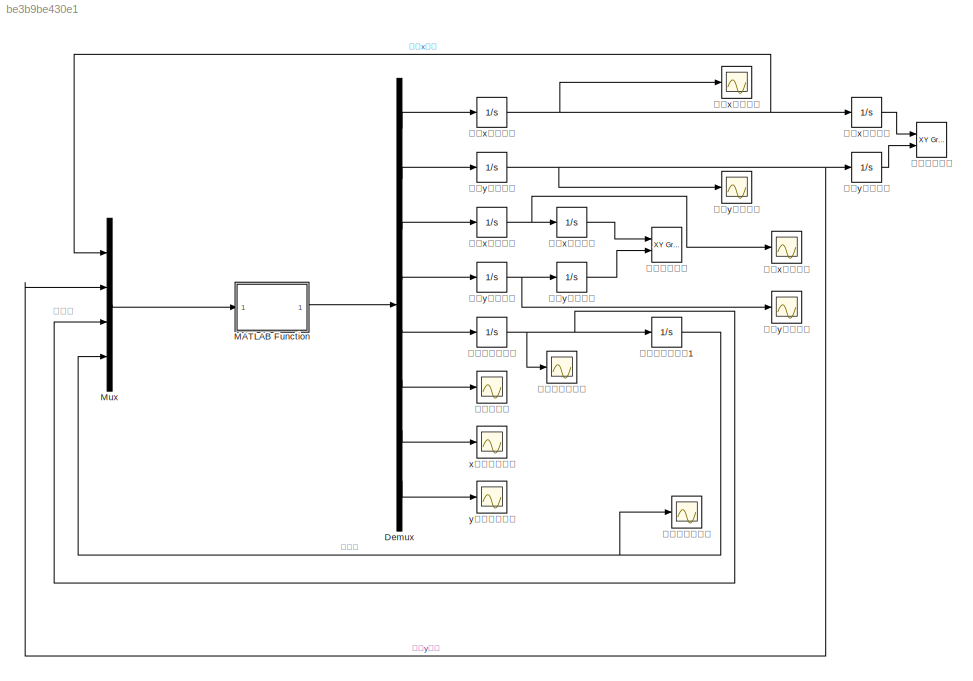
MODEL slx_be3b9be430e1
KIND model
CONFIG AbsTol = auto
CONFIG EnableMultiTasking = off
CONFIG FixedStep = auto
CONFIG MaxStep = auto
CONFIG MinStep = auto
CONFIG RelTol = 1e-3
CONFIG SampleTimeConstraint = Unconstrained
CONFIG Solver = VariableStepAuto
CONFIG SolverName = VariableStepAuto
CONFIG StartTime = 0.0
CONFIG StopTime = 10.0
BLOCK [Demux] Demux
  DisplayOption = bar
  Outputs = 8
  Ports = [1, 8]
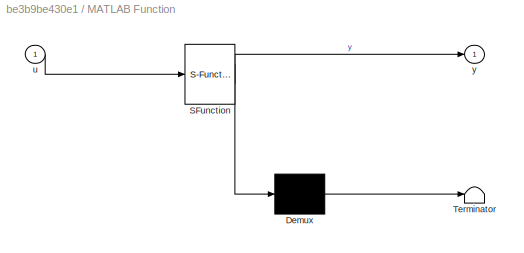
BLOCK [SubSystem] MATLAB Function
  ErrorFcn = Stateflow.Translate.translate
  PermitHierarchicalResolution = ExplicitOnly
  Ports = [1, 1]
  RequestExecContextInheritance = off
  SFBlockType = MATLAB Function
  TreatAsAtomicUnit = on
BLOCK [Demux] MATLAB Function/ Demux 
  Outputs = 1
  Ports = [1, 1]
BLOCK [S-Function] MATLAB Function/ SFunction 
  EnableBusSupport = on
  FunctionName = sf_sfun
  PortCounts = [1 2]
  Ports = [1, 2]
  SFcnIsStateOwnerBlock = off
  SFunctionDeploymentMode = off
  Tag = Stateflow S-Function dynamic1 2
BLOCK [Terminator] MATLAB Function/ Terminator 
BLOCK [Inport] MATLAB Function/u
  IconDisplay = Port number
BLOCK [Outport] MATLAB Function/y
  IconDisplay = Port number
BLOCK [Mux] Mux
  DisplayOption = bar
  Ports = [4, 1]
BLOCK [Scope] x向动反力监视
  Floating = off
  NumInputPorts = 1
  Ports = [1]
  ScopeSpecificationString = Simulink.scopes.TimeScopeBlockCfg('CurrentConfiguration', extmgr.ConfigurationSet(extmgr.Configuration('Core','General UI',true),extmgr.Configuration('Core','Source UI',true),extmgr.Configuration('Sources','WiredSimulink',true,'DataLoggingVariableName','ScopeData1'),extmgr.Configuration('Visuals','Time Domain',true,'SerializedDisplays',{struct('MinYLimReal','-3.23673','MaxYLimReal','3.86446','YLab...<+1395ch>
BLOCK [Scope] y向动反力监视
  Floating = off
  NumInputPorts = 1
  Ports = [1]
  ScopeSpecificationString = Simulink.scopes.TimeScopeBlockCfg('CurrentConfiguration', extmgr.ConfigurationSet(extmgr.Configuration('Core','General UI',true),extmgr.Configuration('Core','Source UI',true),extmgr.Configuration('Sources','WiredSimulink',true,'DataLoggingVariableName','ScopeData2'),extmgr.Configuration('Visuals','Time Domain',true,'SerializedDisplays',{struct('MinYLimReal','-1.42846','MaxYLimReal','9.12327','YLab...<+1395ch>
BLOCK [Integrator] 摆锤x位置积分
  InitialCondition = 0.3536
  Ports = [1, 1]
BLOCK [Scope] 摆锤x速度监视
  Floating = off
  NumInputPorts = 1
  Ports = [1]
  ScopeSpecificationString = Simulink.scopes.TimeScopeBlockCfg('CurrentConfiguration', extmgr.ConfigurationSet(extmgr.Configuration('Core','General UI',true),extmgr.Configuration('Core','Source UI',true),extmgr.Configuration('Sources','WiredSimulink',true,'DataLoggingVariableName','ScopeData7'),extmgr.Configuration('Visuals','Time Domain',true,'SerializedDisplays',{struct('MinYLimReal','-2.41107','MaxYLimReal','7.64109','YLab...<+1366ch>
BLOCK [Integrator] 摆锤x速度积分
  Ports = [1, 1]
BLOCK [Integrator] 摆锤y位置积分
  InitialCondition = 0.6464
  Ports = [1, 1]
BLOCK [Scope] 摆锤y速度监视
  Floating = off
  NumInputPorts = 1
  Ports = [1]
  ScopeSpecificationString = Simulink.scopes.TimeScopeBlockCfg('CurrentConfiguration', extmgr.ConfigurationSet(extmgr.Configuration('Core','General UI',true),extmgr.Configuration('Core','Source UI',true),extmgr.Configuration('Sources','WiredSimulink',true,'DataLoggingVariableName','ScopeData8'),extmgr.Configuration('Visuals','Time Domain',true,'SerializedDisplays',{struct('MinYLimReal','-4.50938','MaxYLimReal','1.05265','YLab...<+1366ch>
BLOCK [Integrator] 摆锤y速度积分
  Ports = [1, 1]
BLOCK [Reference] 摆锤位置监视  REF=simulink/Sinks/XY Graph
  Ports = [2]
  SourceBlock = simulink/Sinks/XY Graph
  SourceProductBaseCode = SL
  SourceProductName = Simulink
  SourceType = XY scope.
BLOCK [Scope] 摆锤角位置监视
  Floating = off
  NumInputPorts = 1
  Ports = [1]
  ScopeSpecificationString = Simulink.scopes.TimeScopeBlockCfg('CurrentConfiguration', extmgr.ConfigurationSet(extmgr.Configuration('Core','General UI',true),extmgr.Configuration('Core','Source UI',true),extmgr.Configuration('Sources','WiredSimulink',true,'DataLoggingVariableName','ScopeData6'),extmgr.Configuration('Visuals','Time Domain',true,'SerializedDisplays',{struct('MinYLimReal','-2.6867','MaxYLimReal','-0.55469','YLab...<+1360ch>
BLOCK [Integrator] 摆锤角位置积分1
  InitialCondition = -pi/4
  Ports = [1, 1]
BLOCK [Scope] 摆锤角速度监视
  Floating = off
  NumInputPorts = 1
  Ports = [1]
  ScopeSpecificationString = Simulink.scopes.TimeScopeBlockCfg('CurrentConfiguration', extmgr.ConfigurationSet(extmgr.Configuration('Core','General UI',true),extmgr.Configuration('Core','Source UI',true),extmgr.Configuration('Sources','WiredSimulink',true,'DataLoggingVariableName','ScopeData5'),extmgr.Configuration('Visuals','Time Domain',true,'SerializedDisplays',{struct('MinYLimReal','-4.54385','MaxYLimReal','4.53615','YLab...<+1366ch>
BLOCK [Integrator] 摆锤角速度积分
  Ports = [1, 1]
BLOCK [Scope] 支持力监视
  Floating = off
  NumInputPorts = 1
  Ports = [1]
  ScopeSpecificationString = Simulink.scopes.TimeScopeBlockCfg('CurrentConfiguration', extmgr.ConfigurationSet(extmgr.Configuration('Core','General UI',true),extmgr.Configuration('Core','Source UI',true),extmgr.Configuration('Sources','WiredSimulink',true),extmgr.Configuration('Visuals','Time Domain',true,'SerializedDisplays',{struct('MinYLimReal','41.90952','MaxYLimReal','51.21501','YLabelReal','','MinYLimMag','41.90952','Ma...<+1333ch>
BLOCK [Integrator] 滑块x位移积分
  Ports = [1, 1]
BLOCK [Scope] 滑块x速度监视
  Floating = off
  NumInputPorts = 1
  Ports = [1]
  ScopeSpecificationString = Simulink.scopes.TimeScopeBlockCfg('CurrentConfiguration', extmgr.ConfigurationSet(extmgr.Configuration('Core','General UI',true),extmgr.Configuration('Core','Source UI',true),extmgr.Configuration('Sources','WiredSimulink',true,'DataLoggingVariableName','ScopeData3'),extmgr.Configuration('Visuals','Time Domain',true,'SerializedDisplays',{struct('MinYLimReal','-0.7073','MaxYLimReal','6.36568','YLabe...<+1391ch>
BLOCK [Integrator] 滑块x速度积分
  Ports = [1, 1]
BLOCK [Integrator] 滑块y位移积分
  InitialCondition = 1
  Ports = [1, 1]
BLOCK [Scope] 滑块y速度监视
  Floating = off
  NumInputPorts = 1
  Ports = [1]
  ScopeSpecificationString = Simulink.scopes.TimeScopeBlockCfg('CurrentConfiguration', extmgr.ConfigurationSet(extmgr.Configuration('Core','General UI',true),extmgr.Configuration('Core','Source UI',true),extmgr.Configuration('Sources','WiredSimulink',true,'DataLoggingVariableName','ScopeData4'),extmgr.Configuration('Visuals','Time Domain',true,'SerializedDisplays',{struct('MinYLimReal','-3.67523','MaxYLimReal','0.40836','YLab...<+1364ch>
BLOCK [Integrator] 滑块y速度积分
  Ports = [1, 1]
BLOCK [Reference] 滑块位置监视  REF=simulink/Sinks/XY Graph
  Ports = [2]
  SourceBlock = simulink/Sinks/XY Graph
  SourceProductBaseCode = SL
  SourceProductName = Simulink
  SourceType = XY scope.
ANNOTATION (root): 角速度
LINE Demux:1 -> 滑块x速度积分:1
LINE Demux:2 -> 滑块y速度积分:1
LINE Demux:3 -> 摆锤x速度积分:1
LINE Demux:4 -> 摆锤y速度积分:1
LINE Demux:5 -> 摆锤角速度积分:1
LINE Demux:6 -> 支持力监视:1
LINE Demux:7 -> x向动反力监视:1
LINE Demux:8 -> y向动反力监视:1
LINE MATLAB Function:1 -> Demux:1
LINE Mux:1 -> MATLAB Function:1
LINE 摆锤x位置积分:1 -> 摆锤位置监视:1
NET 摆锤x速度积分:1 -> 摆锤x位置积分:1, 摆锤x速度监视:1
LINE 摆锤y位置积分:1 -> 摆锤位置监视:2
NET 摆锤y速度积分:1 -> 摆锤y位置积分:1, 摆锤y速度监视:1
NET 摆锤角位置积分1:1 -> Mux:4, 摆锤角位置监视:1
NET 摆锤角速度积分:1 -> Mux:3, 摆锤角位置积分1:1, 摆锤角速度监视:1
LINE 滑块x位移积分:1 -> 滑块位置监视:1
NET 滑块x速度积分:1 -> Mux:1, 滑块x位移积分:1, 滑块x速度监视:1
LINE 滑块y位移积分:1 -> 滑块位置监视:2
NET 滑块y速度积分:1 -> Mux:2, 滑块y位移积分:1, 滑块y速度监视:1
note: NET lines group one-source signal fan-out (src -> all destinations, sorted); 1:1 wires keep LINE
CHART MATLAB Function states=1 transitions=1
  STATE_LABEL 'eML_blk_kernel()'
  STATE_LABEL 'SCRIPT:\nfunction y = fcn(u)\nm1=5;m2=0.5;J=0.01;a=pi/6;l=0.5;g=9.8687;mu=0.5;\nv=u(1)*cos(a)-u(2)*sin(a);\nif v>0\n    sigma=1.0;\nelse\n    sigma=-1.0;\nend\nb=[0;-m1*g;0;-m2*g;0;l*u(3)^2*cos(u(4));l*u(3)^2*sin(u(4));0];\nA=[m1 0 0 0 0 sigma*mu*cos(a)-sin(a) 1 0;\n    0 m1 0 0 0 -sigma*mu*sin(a)-cos(a) 0 1;\n    0 0 m2 0 0 0 -1 0;\n    0 0 0 m2 0 0 0 -1\n    0 0 0 0 J 0 -l*sin(u(4)) l*cos(u(4));\n    1 0 -1 0 ...<+343ch>'
